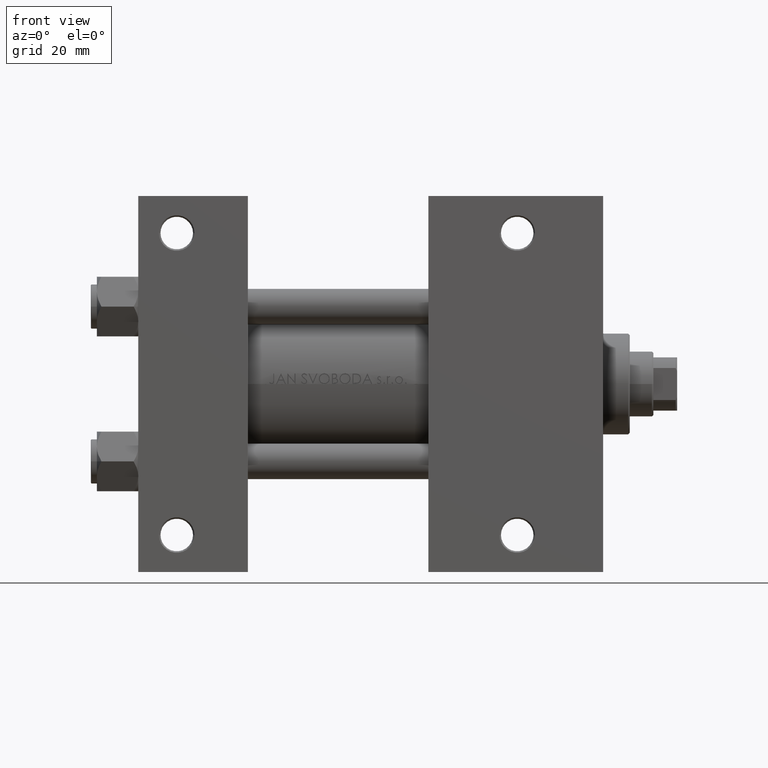
[diagram: clean part render]
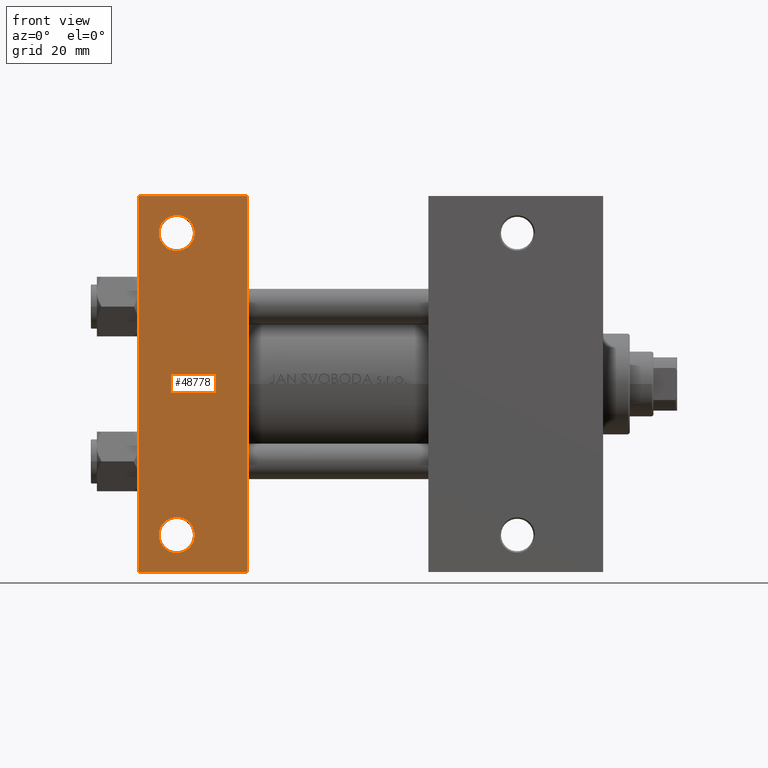
[diagram: same view with one face highlighted and labeled with its STEP entity id]
A machine part, front view. The second image highlights one B-rep face of the part: STEP entity #48778.
In plain terms, the highlighted planar face has unit normal (0, -1, -0).
Its self-contained STEP definition (entity closure, byte-faithful):
#651 = EDGE_CURVE ( 'NONE', #8034, #22183, #42779, .T. ) ;
#1434 = VERTEX_POINT ( 'NONE', #38415 ) ;
#2287 = CARTESIAN_POINT ( 'NONE',  ( 12.99999999999999822, 50.99999999999999289, -37.50000000000000000 ) ) ;
#2543 = AXIS2_PLACEMENT_3D ( 'NONE', #8063, #26759, #48933 ) ;
#2932 = LINE ( 'NONE', #33568, #25703 ) ;
#3905 = ORIENTED_EDGE ( 'NONE', *, *, #651, .T. ) ;
#4145 = PLANE ( 'NONE',  #38054 ) ;
#4757 = ORIENTED_EDGE ( 'NONE', *, *, #29504, .T. ) ;
#6191 = CARTESIAN_POINT ( 'NONE',  ( 37.00000000000000000, 37.49999999999999289, -37.50000000000000000 ) ) ;
#8034 = VERTEX_POINT ( 'NONE', #27167 ) ;
#8063 = CARTESIAN_POINT ( 'NONE',  ( 12.99999999999999822, -51.00000000000001421, -37.50000000000000711 ) ) ;
#9175 = ORIENTED_EDGE ( 'NONE', *, *, #21563, .T. ) ;
#9743 = CARTESIAN_POINT ( 'NONE',  ( 12.99999999999999822, 50.99999999999999289, -37.50000000000000000 ) ) ;
#9844 = VERTEX_POINT ( 'NONE', #22719 ) ;
#10397 = ORIENTED_EDGE ( 'NONE', *, *, #19840, .T. ) ;
#10431 = DIRECTION ( 'NONE',  ( 0.000000000000000000, -1.000000000000000000, -9.251858538542972814E-17 ) ) ;
#10866 = DIRECTION ( 'NONE',  ( 0.000000000000000000, 1.000000000000000000, 9.251858538542972814E-17 ) ) ;
#13820 = EDGE_CURVE ( 'NONE', #21306, #1434, #35174, .T. ) ;
#14395 = CIRCLE ( 'NONE', #28616, 5.999499999999962974 ) ;
#14494 = DIRECTION ( 'NONE',  ( -0.000000000000000000, -9.251858538542972814E-17, 1.000000000000000000 ) ) ;
#14641 = DIRECTION ( 'NONE',  ( 1.000000000000000000, 0.000000000000000000, 0.000000000000000000 ) ) ;
#14807 = CIRCLE ( 'NONE', #31515, 5.999499999999990507 ) ;
#14959 = ORIENTED_EDGE ( 'NONE', *, *, #48349, .T. ) ;
#17229 = VERTEX_POINT ( 'NONE', #36997 ) ;
#17452 = CARTESIAN_POINT ( 'NONE',  ( 7.000500000000034362, 50.99999999999999289, -37.50000000000000000 ) ) ;
#17597 = EDGE_CURVE ( 'NONE', #30308, #22416, #41157, .T. ) ;
#18075 = LINE ( 'NONE', #26057, #39754 ) ;
#18374 = ORIENTED_EDGE ( 'NONE', *, *, #41385, .T. ) ;
#18525 = DIRECTION ( 'NONE',  ( 0.000000000000000000, -1.000000000000000000, -9.251858538542972814E-17 ) ) ;
#19840 = EDGE_CURVE ( 'NONE', #17229, #22416, #18075, .T. ) ;
#21268 = CARTESIAN_POINT ( 'NONE',  ( 18.99949999999998695, -51.00000000000001421, -37.50000000000000711 ) ) ;
#21306 = VERTEX_POINT ( 'NONE', #21268 ) ;
#21563 = EDGE_CURVE ( 'NONE', #22183, #8034, #14395, .T. ) ;
#22183 = VERTEX_POINT ( 'NONE', #17452 ) ;
#22416 = VERTEX_POINT ( 'NONE', #37845 ) ;
#22719 = CARTESIAN_POINT ( 'NONE',  ( 37.00000000000001421, 63.50000000000000000, -37.50000000000002132 ) ) ;
#23004 = VECTOR ( 'NONE', #18525, 1000.000000000000000 ) ;
#24316 = DIRECTION ( 'NONE',  ( -0.000000000000000000, -9.251858538542972814E-17, 1.000000000000000000 ) ) ;
#25703 = VECTOR ( 'NONE', #14641, 1000.000000000000000 ) ;
#26057 = CARTESIAN_POINT ( 'NONE',  ( 3.977209754999747208E-16, -63.50000000000000000, -37.49999999999999289 ) ) ;
#26296 = EDGE_LOOP ( 'NONE', ( #43360, #4757, #14959, #10397 ) ) ;
#26759 = DIRECTION ( 'NONE',  ( -0.000000000000000000, -9.251858538542972814E-17, 1.000000000000000000 ) ) ;
#26810 = DIRECTION ( 'NONE',  ( 0.000000000000000000, 9.251858538542972814E-17, -1.000000000000000000 ) ) ;
#26902 = CARTESIAN_POINT ( 'NONE',  ( 1.595073532467135441E-14, 63.50000000000000000, -37.50000000000002132 ) ) ;
#27079 = CARTESIAN_POINT ( 'NONE',  ( 12.99999999999999822, -51.00000000000001421, -37.50000000000000711 ) ) ;
#27167 = CARTESIAN_POINT ( 'NONE',  ( 18.99949999999996209, 50.99999999999999289, -37.50000000000000000 ) ) ;
#28616 = AXIS2_PLACEMENT_3D ( 'NONE', #2287, #14494, #39889 ) ;
#28811 = DIRECTION ( 'NONE',  ( -1.000000000000000000, -0.000000000000000000, -0.000000000000000000 ) ) ;
#29504 = EDGE_CURVE ( 'NONE', #30308, #9844, #2932, .T. ) ;
#30235 = CARTESIAN_POINT ( 'NONE',  ( 0.000000000000000000, 37.49999999999999289, -37.50000000000000000 ) ) ;
#30308 = VERTEX_POINT ( 'NONE', #26902 ) ;
#30786 = FACE_BOUND ( 'NONE', #39702, .T. ) ;
#31515 = AXIS2_PLACEMENT_3D ( 'NONE', #27079, #24316, #35507 ) ;
#32400 = DIRECTION ( 'NONE',  ( 0.000000000000000000, 1.000000000000000000, 0.000000000000000000 ) ) ;
#32895 = DIRECTION ( 'NONE',  ( -0.000000000000000000, -9.251858538542972814E-17, 1.000000000000000000 ) ) ;
#33264 = AXIS2_PLACEMENT_3D ( 'NONE', #9743, #32895, #32400 ) ;
#33568 = CARTESIAN_POINT ( 'NONE',  ( 1.595073532467135441E-14, 63.50000000000000000, -37.50000000000002132 ) ) ;
#33788 = FACE_BOUND ( 'NONE', #38774, .T. ) ;
#34509 = FACE_OUTER_BOUND ( 'NONE', #26296, .T. ) ;
#35174 = CIRCLE ( 'NONE', #2543, 5.999499999999990507 ) ;
#35507 = DIRECTION ( 'NONE',  ( 0.000000000000000000, 1.000000000000000000, 0.000000000000000000 ) ) ;
#36997 = CARTESIAN_POINT ( 'NONE',  ( 37.00000000000000000, -63.50000000000000000, -37.49999999999999289 ) ) ;
#37845 = CARTESIAN_POINT ( 'NONE',  ( 3.977209754999747208E-16, -63.50000000000000000, -37.49999999999999289 ) ) ;
#38054 = AXIS2_PLACEMENT_3D ( 'NONE', #44992, #26810, #10866 ) ;
#38415 = CARTESIAN_POINT ( 'NONE',  ( 7.000500000000006828, -51.00000000000001421, -37.50000000000000711 ) ) ;
#38774 = EDGE_LOOP ( 'NONE', ( #18374, #40331 ) ) ;
#39702 = EDGE_LOOP ( 'NONE', ( #9175, #3905 ) ) ;
#39754 = VECTOR ( 'NONE', #28811, 1000.000000000000000 ) ;
#39889 = DIRECTION ( 'NONE',  ( 0.000000000000000000, 1.000000000000000000, 0.000000000000000000 ) ) ;
#40331 = ORIENTED_EDGE ( 'NONE', *, *, #13820, .T. ) ;
#41157 = LINE ( 'NONE', #30235, #23004 ) ;
#41385 = EDGE_CURVE ( 'NONE', #1434, #21306, #14807, .T. ) ;
#42779 = CIRCLE ( 'NONE', #33264, 5.999499999999962974 ) ;
#43360 = ORIENTED_EDGE ( 'NONE', *, *, #17597, .F. ) ;
#43590 = VECTOR ( 'NONE', #10431, 1000.000000000000000 ) ;
#44992 = CARTESIAN_POINT ( 'NONE',  ( 37.00000000000000000, 37.49999999999999289, -37.50000000000000000 ) ) ;
#48045 = LINE ( 'NONE', #6191, #43590 ) ;
#48349 = EDGE_CURVE ( 'NONE', #9844, #17229, #48045, .T. ) ;
#48778 = ADVANCED_FACE ( 'NONE', ( #30786, #33788, #34509 ), #4145, .T. ) ;
#48933 = DIRECTION ( 'NONE',  ( 0.000000000000000000, 1.000000000000000000, 0.000000000000000000 ) ) ;